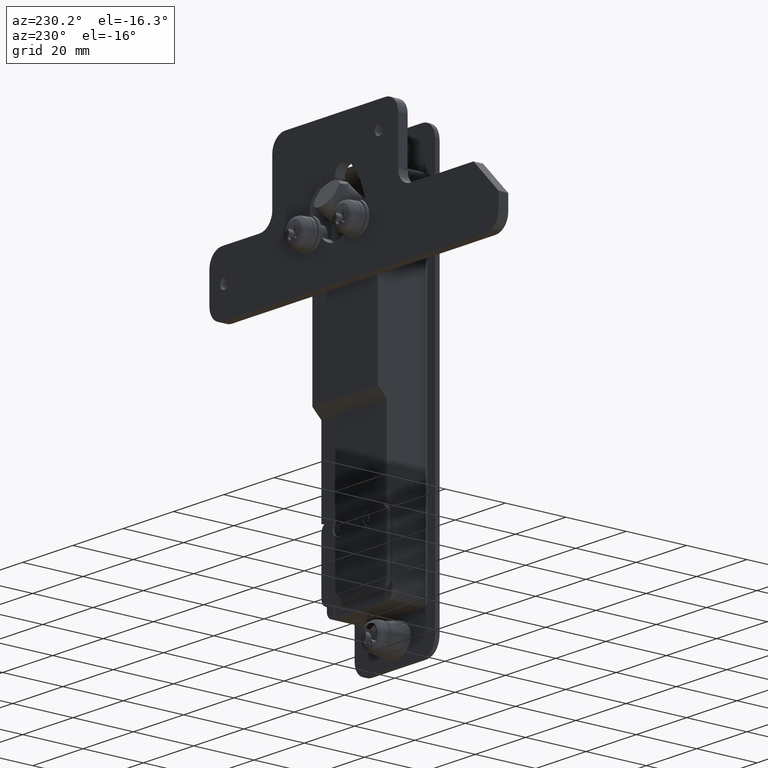
[diagram: clean part render]
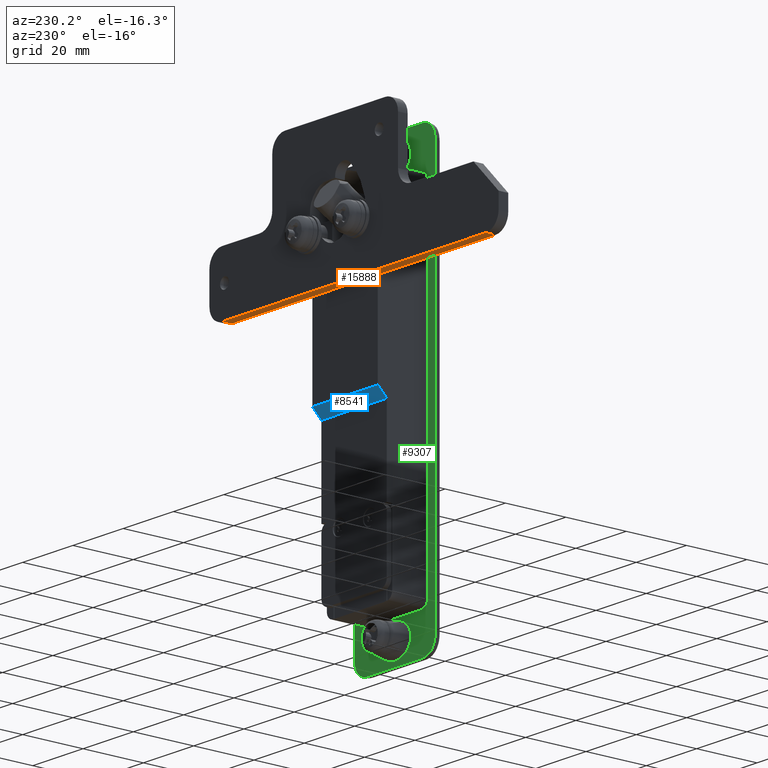
[diagram: same view with three faces highlighted in distinct colors, each labeled with its STEP entity id]
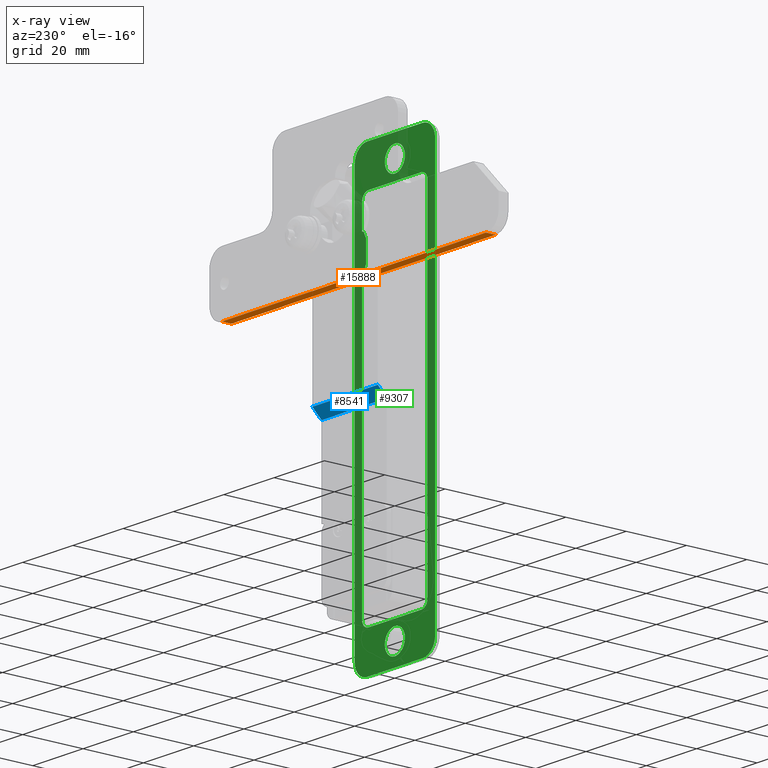
[diagram: x-ray of the same camera — body ghosted, the three highlighted faces saturated]
A machine part, auxiliary view with three faces highlighted in distinct colors.
The next image is the same camera in x-ray (body ghosted, the three faces saturated) — at least one of them is partly hidden behind the body in this view.
Their STEP definitions:

[orange] entity #15888 — the highlighted face is a freeform B-spline surface patch.
#15824=CARTESIAN_POINT('',(17.000000000000249,60.500000000000000,-37.0));
#15825=VERTEX_POINT('',#15824);
#15839=CARTESIAN_POINT('',(20.199999999999999,60.500000000000000,-37.0));
#15840=VERTEX_POINT('',#15839);
#15853=CARTESIAN_POINT('',(20.199999999999999,60.500000000000000,-37.0));
#15854=CARTESIAN_POINT('',(17.000000000000249,60.500000000000000,-37.0));
#15855=QUASI_UNIFORM_CURVE('',1,(#15853,#15854),.UNSPECIFIED.,.F.,.U.);
#15856=EDGE_CURVE('',#15840,#15825,#15855,.T.);
#15861=CARTESIAN_POINT('',(16.840159971904541,65.744749796489629,-37.0));
#15862=CARTESIAN_POINT('',(16.840159971904541,-49.744752612809101,-37.0));
#15863=CARTESIAN_POINT('',(20.359840800571909,65.744749796489629,-37.0));
#15864=CARTESIAN_POINT('',(20.359840800571909,-49.744752612809101,-37.0));
#15865=B_SPLINE_SURFACE_WITH_KNOTS('',1,1,((#15861,#15863),(#15862,#15864)),.UNSPECIFIED.,.F.,.F.,.U.,(2,2),(2,2),(0.0,115.489502409298690),(0.0,3.519680828667365),.UNSPECIFIED.);
#15866=CARTESIAN_POINT('',(17.000000000000249,-44.500000000000000,-37.0));
#15867=VERTEX_POINT('',#15866);
#15868=CARTESIAN_POINT('',(17.000000000000249,-44.500000000000000,-37.0));
#15869=CARTESIAN_POINT('',(17.000000000000249,60.500000000000000,-37.0));
#15870=QUASI_UNIFORM_CURVE('',1,(#15868,#15869),.UNSPECIFIED.,.F.,.U.);
#15871=EDGE_CURVE('',#15867,#15825,#15870,.T.);
#15872=ORIENTED_EDGE('',*,*,#15871,.T.);
#15873=ORIENTED_EDGE('',*,*,#15856,.F.);
#15874=CARTESIAN_POINT('',(20.199999999999999,-44.500000000000000,-37.0));
#15875=VERTEX_POINT('',#15874);
#15876=CARTESIAN_POINT('',(20.199999999999999,-44.500000000000000,-37.0));
#15877=CARTESIAN_POINT('',(20.199999999999999,60.500000000000000,-37.0));
#15878=QUASI_UNIFORM_CURVE('',1,(#15876,#15877),.UNSPECIFIED.,.F.,.U.);
#15879=EDGE_CURVE('',#15875,#15840,#15878,.T.);
#15880=ORIENTED_EDGE('',*,*,#15879,.F.);
#15881=CARTESIAN_POINT('',(20.199999999999999,-44.500000000000000,-37.0));
#15882=CARTESIAN_POINT('',(17.000000000000249,-44.500000000000000,-37.0));
#15883=QUASI_UNIFORM_CURVE('',1,(#15881,#15882),.UNSPECIFIED.,.F.,.U.);
#15884=EDGE_CURVE('',#15875,#15867,#15883,.T.);
#15885=ORIENTED_EDGE('',*,*,#15884,.T.);
#15886=EDGE_LOOP('',(#15872,#15873,#15880,#15885));
#15887=FACE_OUTER_BOUND('',#15886,.T.);
#15888=ADVANCED_FACE('',(#15887),#15865,.F.);

[blue] entity #8541 — the highlighted face is a freeform B-spline surface patch.
#8447=CARTESIAN_POINT('',(16.500000000000000,13.0,-66.0));
#8448=VERTEX_POINT('',#8447);
#8454=CARTESIAN_POINT('',(13.500000000000201,13.0,-69.0));
#8455=VERTEX_POINT('',#8454);
#8456=CARTESIAN_POINT('',(16.500000000000000,13.0,-66.0));
#8457=CARTESIAN_POINT('',(13.500000000000201,13.0,-69.0));
#8458=QUASI_UNIFORM_CURVE('',1,(#8456,#8457),.UNSPECIFIED.,.F.,.U.);
#8459=EDGE_CURVE('',#8448,#8455,#8458,.T.);
#8503=CARTESIAN_POINT('',(13.500000000000201,-13.0,-69.0));
#8504=VERTEX_POINT('',#8503);
#8512=CARTESIAN_POINT('',(13.500000000000201,13.0,-69.0));
#8513=CARTESIAN_POINT('',(13.500000000000201,-13.0,-69.0));
#8514=QUASI_UNIFORM_CURVE('',1,(#8512,#8513),.UNSPECIFIED.,.F.,.U.);
#8515=EDGE_CURVE('',#8455,#8504,#8514,.T.);
#8520=CARTESIAN_POINT('',(13.350150005814729,-14.298699949606959,-69.149849994185359));
#8521=CARTESIAN_POINT('',(16.649850074651692,-14.298699949606959,-65.850149925348305));
#8522=CARTESIAN_POINT('',(13.350150005814729,14.298700646981301,-69.149849994185359));
#8523=CARTESIAN_POINT('',(16.649850074651692,14.298700646981301,-65.850149925348305));
#8524=B_SPLINE_SURFACE_WITH_KNOTS('',1,1,((#8520,#8522),(#8521,#8523)),.UNSPECIFIED.,.F.,.F.,.U.,(2,2),(2,2),(0.0,4.666480589112727),(0.0,28.597400596588258),.UNSPECIFIED.);
#8525=CARTESIAN_POINT('',(16.500000000000000,-13.0,-66.0));
#8526=VERTEX_POINT('',#8525);
#8527=CARTESIAN_POINT('',(16.500000000000000,-13.0,-66.0));
#8528=CARTESIAN_POINT('',(13.500000000000201,-13.0,-69.0));
#8529=QUASI_UNIFORM_CURVE('',1,(#8527,#8528),.UNSPECIFIED.,.F.,.U.);
#8530=EDGE_CURVE('',#8526,#8504,#8529,.T.);
#8531=ORIENTED_EDGE('',*,*,#8530,.T.);
#8532=ORIENTED_EDGE('',*,*,#8515,.F.);
#8533=ORIENTED_EDGE('',*,*,#8459,.F.);
#8534=CARTESIAN_POINT('',(16.500000000000000,13.0,-66.0));
#8535=CARTESIAN_POINT('',(16.500000000000000,-13.0,-66.0));
#8536=QUASI_UNIFORM_CURVE('',1,(#8534,#8535),.UNSPECIFIED.,.F.,.U.);
#8537=EDGE_CURVE('',#8448,#8526,#8536,.T.);
#8538=ORIENTED_EDGE('',*,*,#8537,.T.);
#8539=EDGE_LOOP('',(#8531,#8532,#8533,#8538));
#8540=FACE_OUTER_BOUND('',#8539,.T.);
#8541=ADVANCED_FACE('',(#8540),#8524,.F.);

[green] entity #9307 — the highlighted face is a freeform B-spline surface patch.
#5956=CARTESIAN_POINT('',(1.179612E-016,-2.853002308195761,-125.196362683222110));
#5957=VERTEX_POINT('',#5956);
#5963=CARTESIAN_POINT('',(0.0,-3.999999999999402,-127.999997812366700));
#5964=VERTEX_POINT('',#5963);
#5965=CARTESIAN_POINT('',(0.0,-3.999999999999402,-127.999997812366700));
#5966=CARTESIAN_POINT('',(1.770204E-017,-4.000224175153196,-127.579265726045090));
#5967=CARTESIAN_POINT('',(4.628841E-017,-3.891747171675189,-126.899840767383490));
#5968=CARTESIAN_POINT('',(8.639102E-017,-3.474483675217073,-125.946704598191800));
#5969=CARTESIAN_POINT('',(1.072816E-016,-3.102600046983727,-125.450190023932390));
#5970=CARTESIAN_POINT('',(1.179612E-016,-2.853002308195761,-125.196362683222110));
#5971=B_SPLINE_CURVE_WITH_KNOTS('',3,(#5965,#5966,#5967,#5968,#5969,#5970),.UNSPECIFIED.,.F.,.U.,(4,1,1,4),(0.000000041338623,1.262133862035056,2.038800457385477,3.106760155689703),.UNSPECIFIED.);
#5972=EDGE_CURVE('',#5964,#5957,#5971,.T.);
#5974=CARTESIAN_POINT('',(0.0,0.0,-132.0));
#5975=VERTEX_POINT('',#5974);
#5976=CARTESIAN_POINT('',(0.0,0.0,-132.0));
#5977=CARTESIAN_POINT('',(0.0,-0.425451884148142,-132.000226787709410));
#5978=CARTESIAN_POINT('',(0.0,-1.112528179364602,-131.889301352280510));
#5979=CARTESIAN_POINT('',(0.0,-1.924182058004646,-131.529404614518600));
#5980=CARTESIAN_POINT('',(0.0,-2.524392740366327,-131.128327601295610));
#5981=CARTESIAN_POINT('',(0.0,-3.143775715691552,-130.538931762122500));
#5982=CARTESIAN_POINT('',(0.0,-3.603849201124926,-129.812268440405600));
#5983=CARTESIAN_POINT('',(0.0,-3.924350653021592,-128.916223205036490));
#5984=CARTESIAN_POINT('',(0.0,-4.000131681230836,-128.359982622984290));
#5985=CARTESIAN_POINT('',(0.0,-3.999999999999402,-127.999997812366700));
#5986=B_SPLINE_CURVE_WITH_KNOTS('',3,(#5976,#5977,#5978,#5979,#5980,#5981,#5982,#5983,#5984,#5985),.UNSPECIFIED.,.F.,.U.,(4,1,1,1,1,1,1,4),(0.000000107316869,1.276296597032272,2.061742587076407,2.650820060574812,3.436178215089227,4.614330034457453,5.203414316771667,6.283344210356987),.UNSPECIFIED.);
#5987=EDGE_CURVE('',#5975,#5964,#5986,.T.);
#5989=CARTESIAN_POINT('',(0.0,3.999999999999402,-128.000002187633300));
#5990=VERTEX_POINT('',#5989);
#5991=CARTESIAN_POINT('',(0.0,3.999999999999402,-128.000002187633300));
#5992=CARTESIAN_POINT('',(0.0,4.000232996986521,-128.425456802686200));
#5993=CARTESIAN_POINT('',(0.0,3.889282743343010,-129.112521670485790));
#5994=CARTESIAN_POINT('',(0.0,3.502779547146521,-129.984317484592310));
#5995=CARTESIAN_POINT('',(0.0,3.048355782868964,-130.629542604698510));
#5996=CARTESIAN_POINT('',(0.0,2.476802507764861,-131.173711827792200));
#5997=CARTESIAN_POINT('',(0.0,1.810047223629845,-131.595937939633700));
#5998=CARTESIAN_POINT('',(0.0,0.981689388275603,-131.915469647980390));
#5999=CARTESIAN_POINT('',(0.0,0.359979700646040,-132.000124970641000));
#6000=CARTESIAN_POINT('',(0.0,0.0,-132.0));
#6001=B_SPLINE_CURVE_WITH_KNOTS('',3,(#5991,#5992,#5993,#5994,#5995,#5996,#5997,#5998,#5999,#6000),.UNSPECIFIED.,.F.,.U.,(4,1,1,1,1,1,1,4),(0.000000110316119,1.276296098394234,2.061741780106511,2.847164396089569,3.632522238186109,4.417966141462892,5.203412273468563,6.283341744322865),.UNSPECIFIED.);
#6002=EDGE_CURVE('',#5990,#5975,#6001,.T.);
#6004=CARTESIAN_POINT('',(1.179612E-016,2.803636543432121,-125.146998465171900));
#6005=VERTEX_POINT('',#6004);
#6006=CARTESIAN_POINT('',(1.179612E-016,2.803636543432121,-125.146998465171900));
#6007=CARTESIAN_POINT('',(1.055015E-016,3.110642121846507,-125.448348438126600));
#6008=CARTESIAN_POINT('',(8.202356E-017,3.526591711297308,-126.016184610168910));
#6009=CARTESIAN_POINT('',(4.104017E-017,3.913567547877485,-127.007406837923900));
#6010=CARTESIAN_POINT('',(1.504961E-017,4.000126549299624,-127.636013208069100));
#6011=CARTESIAN_POINT('',(0.0,3.999999999999402,-128.000002187633300));
#6012=B_SPLINE_CURVE_WITH_KNOTS('',3,(#6006,#6007,#6008,#6009,#6010,#6011),.UNSPECIFIED.,.F.,.U.,(4,1,1,4),(0.000000046109796,1.290500190747358,2.084620874095597,3.176582883294102),.UNSPECIFIED.);
#6013=EDGE_CURVE('',#6005,#5990,#6012,.T.);
#6099=CARTESIAN_POINT('',(0.0,0.0,-124.0));
#6100=VERTEX_POINT('',#6099);
#6101=CARTESIAN_POINT('',(0.0,0.0,-124.0));
#6102=CARTESIAN_POINT('',(1.497823E-017,0.355994328924475,-123.999875232249200));
#6103=CARTESIAN_POINT('',(3.812146E-017,0.906049727449527,-124.073972882830600));
#6104=CARTESIAN_POINT('',(7.931321E-017,1.885072496106781,-124.419941243911300));
#6105=CARTESIAN_POINT('',(1.034039E-016,2.457647172394248,-124.806408511442000));
#6106=CARTESIAN_POINT('',(1.179612E-016,2.803636543432121,-125.146998465171900));
#6107=B_SPLINE_CURVE_WITH_KNOTS('',3,(#6101,#6102,#6103,#6104,#6105,#6106),.UNSPECIFIED.,.F.,.U.,(4,1,1,4),(0.000000041289569,1.067960342414996,1.650460830986958,3.106761909240928),.UNSPECIFIED.);
#6108=EDGE_CURVE('',#6100,#6005,#6107,.T.);
#6110=CARTESIAN_POINT('',(1.179612E-016,-2.853002308195761,-125.196362683222110));
#6111=CARTESIAN_POINT('',(1.074166E-016,-2.597971833980268,-124.936646823999100));
#6112=CARTESIAN_POINT('',(8.883261E-017,-2.148500010465046,-124.589826687343010));
#6113=CARTESIAN_POINT('',(4.924009E-017,-1.190917864259410,-124.131020837971500));
#6114=CARTESIAN_POINT('',(2.052496E-017,-0.496415480498341,-123.999543171736210));
#6115=CARTESIAN_POINT('',(0.0,0.0,-124.0));
#6116=B_SPLINE_CURVE_WITH_KNOTS('',3,(#6110,#6111,#6112,#6113,#6114,#6115),.UNSPECIFIED.,.F.,.U.,(4,1,1,4),(0.000000046056847,1.091961449194771,1.687551869348803,3.176581120221671),.UNSPECIFIED.);
#6117=EDGE_CURVE('',#5957,#6100,#6116,.T.);
#6158=CARTESIAN_POINT('',(1.179612E-016,-2.853002308195769,2.803637316777865));
#6159=VERTEX_POINT('',#6158);
#6165=CARTESIAN_POINT('',(0.0,-3.999999999999402,0.000002187633268));
#6166=VERTEX_POINT('',#6165);
#6167=CARTESIAN_POINT('',(0.0,-3.999999999999402,0.000002187633268));
#6168=CARTESIAN_POINT('',(1.225450E-017,-4.000057830388482,0.291260245356696));
#6169=CARTESIAN_POINT('',(3.539984E-017,-3.939622549868002,0.841365797043739));
#6170=CARTESIAN_POINT('',(7.701833E-017,-3.616884607123903,1.830530535171629));
#6171=CARTESIAN_POINT('',(1.034042E-016,-3.193589998676187,2.457654236884809));
#6172=CARTESIAN_POINT('',(1.179612E-016,-2.853002308195769,2.803637316777865));
#6173=B_SPLINE_CURVE_WITH_KNOTS('',3,(#6167,#6168,#6169,#6170,#6171,#6172),.UNSPECIFIED.,.F.,.U.,(4,1,1,4),(0.000000041337235,0.873780548917744,1.650459899499130,3.106760155689719),.UNSPECIFIED.);
#6174=EDGE_CURVE('',#6166,#6159,#6173,.T.);
#6176=CARTESIAN_POINT('',(0.0,0.0,-4.0));
#6177=VERTEX_POINT('',#6176);
#6178=CARTESIAN_POINT('',(0.0,0.0,-4.0));
#6179=CARTESIAN_POINT('',(0.0,-0.425451674398992,-4.000228792226394));
#6180=CARTESIAN_POINT('',(0.0,-1.112525964298007,-3.889296558982198));
#6181=CARTESIAN_POINT('',(0.0,-1.924186703931105,-3.529409951080087));
#6182=CARTESIAN_POINT('',(0.0,-2.524418495892122,-3.128341024760920));
#6183=CARTESIAN_POINT('',(0.0,-3.048364322163682,-2.629541786453578));
#6184=CARTESIAN_POINT('',(0.0,-3.502775360168038,-1.984317603740387));
#6185=CARTESIAN_POINT('',(0.0,-3.889285470423619,-1.112512870680036));
#6186=CARTESIAN_POINT('',(0.0,-4.000232961483454,-0.425453993121061));
#6187=CARTESIAN_POINT('',(0.0,-3.999999999999402,0.000002187633268));
#6188=B_SPLINE_CURVE_WITH_KNOTS('',3,(#6178,#6179,#6180,#6181,#6182,#6183,#6184,#6185,#6186,#6187),.UNSPECIFIED.,.F.,.U.,(4,1,1,1,1,1,1,4),(0.000000107319853,1.276296597033949,2.061742587077006,2.650820060574647,3.436178215089038,4.221602052343412,5.007048492501903,6.283344210356973),.UNSPECIFIED.);
#6189=EDGE_CURVE('',#6177,#6166,#6188,.T.);
#6191=CARTESIAN_POINT('',(0.0,3.999999999999401,-0.000002187633298));
#6192=VERTEX_POINT('',#6191);
#6193=CARTESIAN_POINT('',(0.0,3.999999999999401,-0.000002187633298));
#6194=CARTESIAN_POINT('',(0.0,4.000234021395744,-0.425455811059685));
#6195=CARTESIAN_POINT('',(0.0,3.889282380642512,-1.112522889637867));
#6196=CARTESIAN_POINT('',(0.0,3.502779198809019,-1.984315937776965));
#6197=CARTESIAN_POINT('',(0.0,3.048356655587177,-2.629543324463793));
#6198=CARTESIAN_POINT('',(0.0,2.476803491719609,-3.173717539076459));
#6199=CARTESIAN_POINT('',(0.0,1.865604126736617,-3.560716825351511));
#6200=CARTESIAN_POINT('',(0.0,1.047073149365816,-3.899851263256732));
#6201=CARTESIAN_POINT('',(0.0,0.425455728550825,-4.000227734396899));
#6202=CARTESIAN_POINT('',(0.0,0.0,-4.0));
#6203=B_SPLINE_CURVE_WITH_KNOTS('',3,(#6193,#6194,#6195,#6196,#6197,#6198,#6199,#6200,#6201,#6202),.UNSPECIFIED.,.F.,.U.,(4,1,1,1,1,1,1,4),(0.000000110319057,1.276296098397757,2.061741780110281,2.847164396092473,3.632522238188321,4.417966141464635,5.007046526412756,6.283341744322875),.UNSPECIFIED.);
#6204=EDGE_CURVE('',#6192,#6177,#6203,.T.);
#6206=CARTESIAN_POINT('',(1.179612E-016,2.803636543432120,2.853001534828099));
#6207=VERTEX_POINT('',#6206);
#6208=CARTESIAN_POINT('',(1.179612E-016,2.803636543432120,2.853001534828099));
#6209=CARTESIAN_POINT('',(1.055015E-016,3.110642512192821,2.551651520074772));
#6210=CARTESIAN_POINT('',(8.202357E-017,3.526591723471529,1.983815677946249));
#6211=CARTESIAN_POINT('',(4.104014E-017,3.913567386826653,0.992592469343817));
#6212=CARTESIAN_POINT('',(1.504962E-017,4.000126640324521,0.363987148157813));
#6213=CARTESIAN_POINT('',(0.0,3.999999999999401,-0.000002187633298));
#6214=B_SPLINE_CURVE_WITH_KNOTS('',3,(#6208,#6209,#6210,#6211,#6212,#6213),.UNSPECIFIED.,.F.,.U.,(4,1,1,4),(0.000000046111050,1.290500190748229,2.084620874096184,3.176582883294103),.UNSPECIFIED.);
#6215=EDGE_CURVE('',#6207,#6192,#6214,.T.);
#6300=CARTESIAN_POINT('',(0.0,0.0,4.0));
#6301=VERTEX_POINT('',#6300);
#6302=CARTESIAN_POINT('',(0.0,0.0,4.0));
#6303=CARTESIAN_POINT('',(1.770205E-017,0.420732556300682,4.000224385944126));
#6304=CARTESIAN_POINT('',(4.628846E-017,1.100158471278441,3.891747440638451));
#6305=CARTESIAN_POINT('',(8.639099E-017,2.053293315602927,3.474482909430870));
#6306=CARTESIAN_POINT('',(1.072816E-016,2.549810003620445,3.102599996484455));
#6307=CARTESIAN_POINT('',(1.179612E-016,2.803636543432120,2.853001534828099));
#6308=B_SPLINE_CURVE_WITH_KNOTS('',3,(#6302,#6303,#6304,#6305,#6306,#6307),.UNSPECIFIED.,.F.,.U.,(4,1,1,4),(0.000000041286986,1.262134574421239,2.038801608172358,3.106761909240962),.UNSPECIFIED.);
#6309=EDGE_CURVE('',#6301,#6207,#6308,.T.);
#6311=CARTESIAN_POINT('',(1.179612E-016,-2.853002308195769,2.803637316777865));
#6312=CARTESIAN_POINT('',(1.055022E-016,-2.551670106452317,3.110668910565980));
#6313=CARTESIAN_POINT('',(8.202300E-017,-1.983803357090345,3.526572468006704));
#6314=CARTESIAN_POINT('',(4.104012E-017,-0.992593883480480,3.913567067561145));
#6315=CARTESIAN_POINT('',(1.504969E-017,-0.363990770671197,4.000129432253511));
#6316=CARTESIAN_POINT('',(0.0,0.0,4.0));
#6317=B_SPLINE_CURVE_WITH_KNOTS('',3,(#6311,#6312,#6313,#6314,#6315,#6316),.UNSPECIFIED.,.F.,.U.,(4,1,1,4),(0.000000046056928,1.290499474453734,2.084619717142481,3.176581120221675),.UNSPECIFIED.);
#6318=EDGE_CURVE('',#6159,#6301,#6317,.T.);
#6886=CARTESIAN_POINT('',(0.0,-11.500000000000000,-25.500000000000000));
#6887=VERTEX_POINT('',#6886);
#6888=CARTESIAN_POINT('',(0.0,-12.500000000000000,-27.500000000000000));
#6889=VERTEX_POINT('',#6888);
#6890=CARTESIAN_POINT('',(0.0,-11.500000000000000,-25.500000000000000));
#6891=CARTESIAN_POINT('',(0.0,-12.500000000000000,-27.500000000000000));
#6892=QUASI_UNIFORM_CURVE('',1,(#6890,#6891),.UNSPECIFIED.,.F.,.U.);
#6893=EDGE_CURVE('',#6887,#6889,#6892,.T.);
#6914=CARTESIAN_POINT('',(0.0,-12.500000000000000,-16.500000000000000));
#6915=VERTEX_POINT('',#6914);
#6916=CARTESIAN_POINT('',(0.0,-11.500000000000000,-18.500000000000000));
#6917=VERTEX_POINT('',#6916);
#6918=CARTESIAN_POINT('',(0.0,-12.500000000000000,-16.500000000000000));
#6919=CARTESIAN_POINT('',(0.0,-11.500000000000000,-18.500000000000000));
#6920=QUASI_UNIFORM_CURVE('',1,(#6918,#6919),.UNSPECIFIED.,.F.,.U.);
#6921=EDGE_CURVE('',#6915,#6917,#6920,.T.);
#6946=CARTESIAN_POINT('',(0.0,-11.500000000000000,-18.500000000000000));
#6947=CARTESIAN_POINT('',(0.0,-11.500000000000000,-25.500000000000000));
#6948=QUASI_UNIFORM_CURVE('',1,(#6946,#6947),.UNSPECIFIED.,.F.,.U.);
#6949=EDGE_CURVE('',#6917,#6887,#6948,.T.);
#6967=CARTESIAN_POINT('',(0.0,-13.0,-16.500000000000000));
#6968=VERTEX_POINT('',#6967);
#6969=CARTESIAN_POINT('',(0.0,-13.0,-16.500000000000000));
#6970=CARTESIAN_POINT('',(0.0,-12.500000000000000,-16.500000000000000));
#6971=QUASI_UNIFORM_CURVE('',1,(#6969,#6970),.UNSPECIFIED.,.F.,.U.);
#6972=EDGE_CURVE('',#6968,#6915,#6971,.T.);
#6991=CARTESIAN_POINT('',(0.0,-13.0,-27.500000000000000));
#6992=VERTEX_POINT('',#6991);
#6993=CARTESIAN_POINT('',(0.0,-12.500000000000000,-27.500000000000000));
#6994=CARTESIAN_POINT('',(0.0,-13.0,-27.500000000000000));
#6995=QUASI_UNIFORM_CURVE('',1,(#6993,#6994),.UNSPECIFIED.,.F.,.U.);
#6996=EDGE_CURVE('',#6889,#6992,#6995,.T.);
#8236=CARTESIAN_POINT('',(0.0,10.500000000000000,-122.0));
#8237=VERTEX_POINT('',#8236);
#8243=CARTESIAN_POINT('',(0.0,13.0,-119.500000000000000));
#8244=VERTEX_POINT('',#8243);
#8245=CARTESIAN_POINT('',(0.0,13.0,-119.500000000000000));
#8246=CARTESIAN_POINT('',(0.0,13.000098849815510,-119.745444592442400));
#8247=CARTESIAN_POINT('',(0.0,12.927158097012480,-120.236282301523100));
#8248=CARTESIAN_POINT('',(0.0,12.653135106868961,-120.815693148551800));
#8249=CARTESIAN_POINT('',(0.0,12.293885295458850,-121.264430398403310));
#8250=CARTESIAN_POINT('',(0.0,11.931743741667850,-121.569130197769400));
#8251=CARTESIAN_POINT('',(0.0,11.338278210875041,-121.895891869721300));
#8252=CARTESIAN_POINT('',(0.0,10.847804675309071,-122.000476564454200));
#8253=CARTESIAN_POINT('',(0.0,10.500000000000000,-122.0));
#8254=B_SPLINE_CURVE_WITH_KNOTS('',3,(#8245,#8246,#8247,#8248,#8249,#8250,#8251,#8252,#8253),.UNSPECIFIED.,.F.,.U.,(4,1,1,1,1,1,4),(0.000000307285823,0.736328012428443,1.472668773862309,1.902226731291120,2.454423627831745,2.883953723053932,3.927089360865631),.UNSPECIFIED.);
#8255=EDGE_CURVE('',#8244,#8237,#8254,.T.);
#8284=CARTESIAN_POINT('',(0.0,-13.0,-119.500000000000000));
#8285=VERTEX_POINT('',#8284);
#8291=CARTESIAN_POINT('',(0.0,-10.500000000000000,-122.0));
#8292=VERTEX_POINT('',#8291);
#8293=CARTESIAN_POINT('',(0.0,-10.500000000000000,-122.0));
#8294=CARTESIAN_POINT('',(0.0,-10.745428879900990,-122.000059798029600));
#8295=CARTESIAN_POINT('',(0.0,-11.277256890300981,-121.921199385925900));
#8296=CARTESIAN_POINT('',(0.0,-11.926075306758699,-121.594561982632000));
#8297=CARTESIAN_POINT('',(0.0,-12.453757425267510,-121.104278591100000));
#8298=CARTESIAN_POINT('',(0.0,-12.874149695774941,-120.440545042293000));
#8299=CARTESIAN_POINT('',(0.0,-13.000464854834551,-119.847780903344800));
#8300=CARTESIAN_POINT('',(0.0,-13.0,-119.500000000000000));
#8301=B_SPLINE_CURVE_WITH_KNOTS('',3,(#8293,#8294,#8295,#8296,#8297,#8298,#8299,#8300),.UNSPECIFIED.,.F.,.U.,(4,1,1,1,1,4),(0.000000307291452,0.736328012432350,1.595420858034392,2.147583915955501,2.883953723053406,3.927089360865758),.UNSPECIFIED.);
#8302=EDGE_CURVE('',#8292,#8285,#8301,.T.);
#8326=CARTESIAN_POINT('',(0.0,10.500000000000000,-6.000000000000110));
#8327=VERTEX_POINT('',#8326);
#8328=CARTESIAN_POINT('',(0.0,13.0,-8.500000000000121));
#8329=VERTEX_POINT('',#8328);
#8330=CARTESIAN_POINT('',(0.0,10.500000000000000,-6.000000000000110));
#8331=CARTESIAN_POINT('',(0.0,10.868309188004030,-5.999369534058603));
#8332=CARTESIAN_POINT('',(0.0,11.399489660176600,-6.119736705591026));
#8333=CARTESIAN_POINT('',(0.0,12.104753676186840,-6.542338108630940));
#8334=CARTESIAN_POINT('',(0.0,12.548352843476620,-7.008314947644226));
#8335=CARTESIAN_POINT('',(0.0,12.908436138507220,-7.702510928190458));
#8336=CARTESIAN_POINT('',(0.0,13.000273303088420,-8.193160770849598));
#8337=CARTESIAN_POINT('',(0.0,13.0,-8.500000000000121));
#8338=B_SPLINE_CURVE_WITH_KNOTS('',3,(#8330,#8331,#8332,#8333,#8334,#8335,#8336,#8337),.UNSPECIFIED.,.F.,.U.,(4,1,1,1,1,4),(0.000000307281356,1.104503001163459,1.595420858029526,2.454423627829561,3.006680473629259,3.927089360865744),.UNSPECIFIED.);
#8339=EDGE_CURVE('',#8327,#8329,#8338,.T.);
#8383=CARTESIAN_POINT('',(0.0,-13.0,-8.500000000000121));
#8384=VERTEX_POINT('',#8383);
#8385=CARTESIAN_POINT('',(0.0,-10.500000000000000,-6.000000000000110));
#8386=VERTEX_POINT('',#8385);
#8387=CARTESIAN_POINT('',(0.0,-13.0,-8.500000000000121));
#8388=CARTESIAN_POINT('',(0.0,-13.000115535533860,-8.254548467684755));
#8389=CARTESIAN_POINT('',(0.0,-12.939243390472029,-7.845560139885618));
#8390=CARTESIAN_POINT('',(0.0,-12.711153209950981,-7.294905137054337));
#8391=CARTESIAN_POINT('',(0.0,-12.385215811121959,-6.819753096591348));
#8392=CARTESIAN_POINT('',(0.0,-11.967738492754810,-6.450637430779063));
#8393=CARTESIAN_POINT('',(0.0,-11.338267942062430,-6.104122763425346));
#8394=CARTESIAN_POINT('',(0.0,-10.847806204498310,-5.999520755182733));
#8395=CARTESIAN_POINT('',(0.0,-10.500000000000000,-6.000000000000110));
#8396=B_SPLINE_CURVE_WITH_KNOTS('',3,(#8387,#8388,#8389,#8390,#8391,#8392,#8393,#8394,#8395),.UNSPECIFIED.,.F.,.U.,(4,1,1,1,1,1,4),(0.000000307281098,0.736328012424337,1.227220193735469,1.779506265131924,2.454423627829332,2.883953723052168,3.927089360865761),.UNSPECIFIED.);
#8397=EDGE_CURVE('',#8384,#8386,#8396,.T.);
#8435=CARTESIAN_POINT('',(0.0,13.0,-119.500000000000000));
#8436=CARTESIAN_POINT('',(0.0,13.0,-8.500000000000121));
#8437=QUASI_UNIFORM_CURVE('',1,(#8435,#8436),.UNSPECIFIED.,.F.,.U.);
#8438=EDGE_CURVE('',#8244,#8329,#8437,.T.);
#8486=CARTESIAN_POINT('',(0.0,10.500000000000000,-122.0));
#8487=CARTESIAN_POINT('',(0.0,-10.500000000000000,-122.0));
#8488=QUASI_UNIFORM_CURVE('',1,(#8486,#8487),.UNSPECIFIED.,.F.,.U.);
#8489=EDGE_CURVE('',#8237,#8292,#8488,.T.);
#8547=CARTESIAN_POINT('',(0.0,10.500000000000000,-6.000000000000110));
#8548=CARTESIAN_POINT('',(0.0,-10.500000000000000,-6.000000000000110));
#8549=QUASI_UNIFORM_CURVE('',1,(#8547,#8548),.UNSPECIFIED.,.F.,.U.);
#8550=EDGE_CURVE('',#8327,#8386,#8549,.T.);
#8952=CARTESIAN_POINT('',(0.0,16.0,2.0));
#8953=VERTEX_POINT('',#8952);
#8960=CARTESIAN_POINT('',(0.0,11.0,7.0));
#8961=VERTEX_POINT('',#8960);
#8967=CARTESIAN_POINT('',(0.0,16.0,2.0));
#8968=CARTESIAN_POINT('',(0.0,16.000161274168590,2.470433219999267));
#8969=CARTESIAN_POINT('',(0.0,15.880776884789590,3.308929637561149));
#8970=CARTESIAN_POINT('',(0.0,15.439719087298320,4.373577168613169));
#8971=CARTESIAN_POINT('',(0.0,14.829382785656250,5.275003232529780));
#8972=CARTESIAN_POINT('',(0.0,13.978753245243031,6.085036977740066));
#8973=CARTESIAN_POINT('',(0.0,12.676828046487060,6.801649505417016));
#8974=CARTESIAN_POINT('',(0.0,11.613671470358330,7.000542291773358));
#8975=CARTESIAN_POINT('',(0.0,11.0,7.0));
#8976=B_SPLINE_CURVE_WITH_KNOTS('',3,(#8967,#8968,#8969,#8970,#8971,#8972,#8973,#8974,#8975),.UNSPECIFIED.,.F.,.U.,(4,1,1,1,1,1,4),(0.000000199412749,1.411269916158082,2.515762995773075,3.436183303924969,4.663289948637261,6.013243548759570,7.854030914394557),.UNSPECIFIED.);
#8977=EDGE_CURVE('',#8953,#8961,#8976,.T.);
#8996=CARTESIAN_POINT('',(0.0,-11.0,7.0));
#8997=VERTEX_POINT('',#8996);
#9004=CARTESIAN_POINT('',(0.0,-16.0,2.0));
#9005=VERTEX_POINT('',#9004);
#9011=CARTESIAN_POINT('',(0.0,-11.0,7.0));
#9012=CARTESIAN_POINT('',(0.0,-11.634151526412740,7.000593927763498));
#9013=CARTESIAN_POINT('',(0.0,-12.594970335524931,6.814645280721389));
#9014=CARTESIAN_POINT('',(0.0,-13.689474767263450,6.246479119146965));
#9015=CARTESIAN_POINT('',(0.0,-14.388310495140740,5.707970814677224));
#9016=CARTESIAN_POINT('',(0.0,-15.101008913072009,4.941002553542348));
#9017=CARTESIAN_POINT('',(0.0,-15.794120517273560,3.717826355774256));
#9018=CARTESIAN_POINT('',(0.0,-16.000496678267591,2.613631544154323));
#9019=CARTESIAN_POINT('',(0.0,-16.0,2.0));
#9020=B_SPLINE_CURVE_WITH_KNOTS('',3,(#9011,#9012,#9013,#9014,#9015,#9016,#9017,#9018,#9019),.UNSPECIFIED.,.F.,.U.,(4,1,1,1,1,1,4),(0.000000199412371,1.902148024270266,2.883922858199119,3.681611301389061,4.540568833452909,6.013243548759675,7.854030914394552),.UNSPECIFIED.);
#9021=EDGE_CURVE('',#8997,#9005,#9020,.T.);
#9040=CARTESIAN_POINT('',(0.0,11.0,-135.0));
#9041=VERTEX_POINT('',#9040);
#9048=CARTESIAN_POINT('',(0.0,16.0,-130.0));
#9049=VERTEX_POINT('',#9048);
#9055=CARTESIAN_POINT('',(0.0,11.0,-135.0));
#9056=CARTESIAN_POINT('',(0.0,11.368147842830810,-135.000053515924210));
#9057=CARTESIAN_POINT('',(0.0,12.145359793631339,-134.913820921823290));
#9058=CARTESIAN_POINT('',(0.0,13.134894530003161,-134.559780357980400));
#9059=CARTESIAN_POINT('',(0.0,14.081749951296240,-133.984301904254610));
#9060=CARTESIAN_POINT('',(0.0,14.923137262277450,-133.193220376087400));
#9061=CARTESIAN_POINT('',(0.0,15.594441445729480,-132.103688261259090));
#9062=CARTESIAN_POINT('',(0.0,15.935833702010070,-131.002201195522390));
#9063=CARTESIAN_POINT('',(0.0,16.000021328423738,-130.306792468810700));
#9064=CARTESIAN_POINT('',(0.0,16.0,-130.0));
#9065=B_SPLINE_CURVE_WITH_KNOTS('',3,(#9055,#9056,#9057,#9058,#9059,#9060,#9061,#9062,#9063,#9064),.UNSPECIFIED.,.F.,.U.,(4,1,1,1,1,1,1,4),(0.000000199442615,1.104448041098682,2.331666779029317,3.129350794009008,4.417850035108414,5.767802940662014,6.933643883983307,7.854030914394498),.UNSPECIFIED.);
#9066=EDGE_CURVE('',#9041,#9049,#9065,.T.);
#9085=CARTESIAN_POINT('',(0.0,-16.0,-130.0));
#9086=VERTEX_POINT('',#9085);
#9093=CARTESIAN_POINT('',(0.0,-11.0,-135.0));
#9094=VERTEX_POINT('',#9093);
#9100=CARTESIAN_POINT('',(0.0,-16.0,-130.0));
#9101=CARTESIAN_POINT('',(0.0,-16.000609701100618,-130.634172989467490));
#9102=CARTESIAN_POINT('',(0.0,-15.822482851582990,-131.554015632531300));
#9103=CARTESIAN_POINT('',(0.0,-15.194786988785230,-132.801010319766390));
#9104=CARTESIAN_POINT('',(0.0,-14.508289671662430,-133.627103397053590));
#9105=CARTESIAN_POINT('',(0.0,-13.555715550847699,-134.342606182523010));
#9106=CARTESIAN_POINT('',(0.0,-12.431606647155920,-134.857562389057510));
#9107=CARTESIAN_POINT('',(0.0,-11.511343588991361,-135.000246945418210));
#9108=CARTESIAN_POINT('',(0.0,-11.0,-135.0));
#9109=B_SPLINE_CURVE_WITH_KNOTS('',3,(#9100,#9101,#9102,#9103,#9104,#9105,#9106,#9107,#9108),.UNSPECIFIED.,.F.,.U.,(4,1,1,1,1,1,4),(0.000000199417150,1.902148024271031,2.761204710096911,4.172422607853269,5.092833239583361,6.320053276289036,7.854030914394536),.UNSPECIFIED.);
#9110=EDGE_CURVE('',#9086,#9094,#9109,.T.);
#9157=CARTESIAN_POINT('',(0.0,16.0,-130.0));
#9158=CARTESIAN_POINT('',(0.0,16.0,2.0));
#9159=QUASI_UNIFORM_CURVE('',1,(#9157,#9158),.UNSPECIFIED.,.F.,.U.);
#9160=EDGE_CURVE('',#9049,#8953,#9159,.T.);
#9173=CARTESIAN_POINT('',(0.0,-16.0,-130.0));
#9174=CARTESIAN_POINT('',(0.0,-16.0,2.0));
#9175=QUASI_UNIFORM_CURVE('',1,(#9173,#9174),.UNSPECIFIED.,.F.,.U.);
#9176=EDGE_CURVE('',#9086,#9005,#9175,.T.);
#9195=CARTESIAN_POINT('',(0.0,-11.0,-135.0));
#9196=CARTESIAN_POINT('',(0.0,11.0,-135.0));
#9197=QUASI_UNIFORM_CURVE('',1,(#9195,#9196),.UNSPECIFIED.,.F.,.U.);
#9198=EDGE_CURVE('',#9094,#9041,#9197,.T.);
#9242=CARTESIAN_POINT('',(0.0,-11.0,7.0));
#9243=CARTESIAN_POINT('',(0.0,11.0,7.0));
#9244=QUASI_UNIFORM_CURVE('',1,(#9242,#9243),.UNSPECIFIED.,.F.,.U.);
#9245=EDGE_CURVE('',#8997,#8961,#9244,.T.);
#9252=CARTESIAN_POINT('',(0.0,-17.598399937977788,-142.092899724776400));
#9253=CARTESIAN_POINT('',(0.0,-17.598399937977788,14.092903533513249));
#9254=CARTESIAN_POINT('',(0.0,17.598400796284679,-142.092899724776400));
#9255=CARTESIAN_POINT('',(0.0,17.598400796284679,14.092903533513249));
#9256=B_SPLINE_SURFACE_WITH_KNOTS('',1,1,((#9252,#9254),(#9253,#9255)),.UNSPECIFIED.,.F.,.F.,.U.,(2,2),(2,2),(0.0,156.185803258289700),(0.0,35.196800734262467),.UNSPECIFIED.);
#9257=ORIENTED_EDGE('',*,*,#9176,.F.);
#9258=ORIENTED_EDGE('',*,*,#9110,.T.);
#9259=ORIENTED_EDGE('',*,*,#9198,.T.);
#9260=ORIENTED_EDGE('',*,*,#9066,.T.);
#9261=ORIENTED_EDGE('',*,*,#9160,.T.);
#9262=ORIENTED_EDGE('',*,*,#8977,.T.);
#9263=ORIENTED_EDGE('',*,*,#9245,.F.);
#9264=ORIENTED_EDGE('',*,*,#9021,.T.);
#9265=EDGE_LOOP('',(#9257,#9258,#9259,#9260,#9261,#9262,#9263,#9264));
#9266=FACE_OUTER_BOUND('',#9265,.T.);
#9267=CARTESIAN_POINT('',(0.0,-13.0,-119.500000000000000));
#9268=CARTESIAN_POINT('',(0.0,-13.0,-27.500000000000000));
#9269=QUASI_UNIFORM_CURVE('',1,(#9267,#9268),.UNSPECIFIED.,.F.,.U.);
#9270=EDGE_CURVE('',#8285,#6992,#9269,.T.);
#9271=ORIENTED_EDGE('',*,*,#9270,.T.);
#9272=ORIENTED_EDGE('',*,*,#6996,.F.);
#9273=ORIENTED_EDGE('',*,*,#6893,.F.);
#9274=ORIENTED_EDGE('',*,*,#6949,.F.);
#9275=ORIENTED_EDGE('',*,*,#6921,.F.);
#9276=ORIENTED_EDGE('',*,*,#6972,.F.);
#9277=CARTESIAN_POINT('',(0.0,-13.0,-16.500000000000000));
#9278=CARTESIAN_POINT('',(0.0,-13.0,-8.500000000000121));
#9279=QUASI_UNIFORM_CURVE('',1,(#9277,#9278),.UNSPECIFIED.,.F.,.U.);
#9280=EDGE_CURVE('',#6968,#8384,#9279,.T.);
#9281=ORIENTED_EDGE('',*,*,#9280,.T.);
#9282=ORIENTED_EDGE('',*,*,#8397,.T.);
#9283=ORIENTED_EDGE('',*,*,#8550,.F.);
#9284=ORIENTED_EDGE('',*,*,#8339,.T.);
#9285=ORIENTED_EDGE('',*,*,#8438,.F.);
#9286=ORIENTED_EDGE('',*,*,#8255,.T.);
#9287=ORIENTED_EDGE('',*,*,#8489,.T.);
#9288=ORIENTED_EDGE('',*,*,#8302,.T.);
#9289=EDGE_LOOP('',(#9271,#9272,#9273,#9274,#9275,#9276,#9281,#9282,#9283,#9284,#9285,#9286,#9287,#9288));
#9290=FACE_BOUND('',#9289,.T.);
#9291=ORIENTED_EDGE('',*,*,#6002,.T.);
#9292=ORIENTED_EDGE('',*,*,#5987,.T.);
#9293=ORIENTED_EDGE('',*,*,#5972,.T.);
#9294=ORIENTED_EDGE('',*,*,#6117,.T.);
#9295=ORIENTED_EDGE('',*,*,#6108,.T.);
#9296=ORIENTED_EDGE('',*,*,#6013,.T.);
#9297=EDGE_LOOP('',(#9291,#9292,#9293,#9294,#9295,#9296));
#9298=FACE_BOUND('',#9297,.T.);
#9299=ORIENTED_EDGE('',*,*,#6204,.T.);
#9300=ORIENTED_EDGE('',*,*,#6189,.T.);
#9301=ORIENTED_EDGE('',*,*,#6174,.T.);
#9302=ORIENTED_EDGE('',*,*,#6318,.T.);
#9303=ORIENTED_EDGE('',*,*,#6309,.T.);
#9304=ORIENTED_EDGE('',*,*,#6215,.T.);
#9305=EDGE_LOOP('',(#9299,#9300,#9301,#9302,#9303,#9304));
#9306=FACE_BOUND('',#9305,.T.);
#9307=ADVANCED_FACE('',(#9266,#9290,#9298,#9306),#9256,.F.);